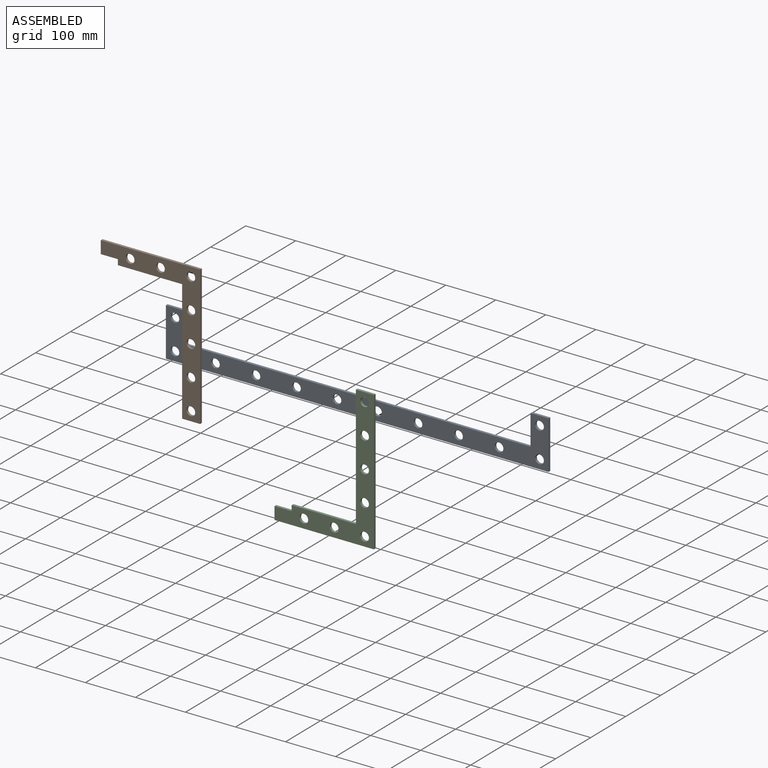
[diagram: assembled view]
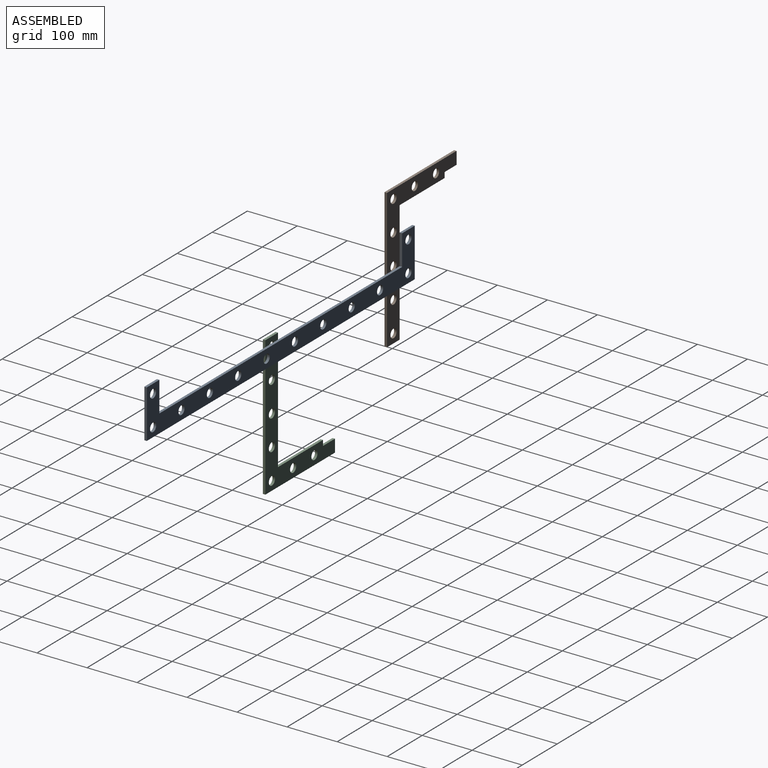
[diagram: assembled view, second angle]
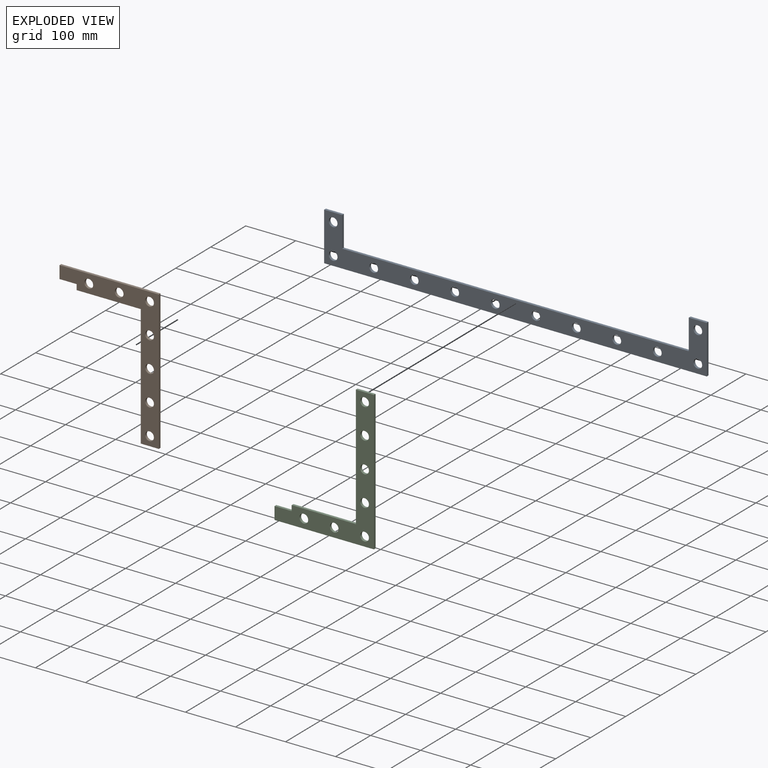
[diagram: exploded view]
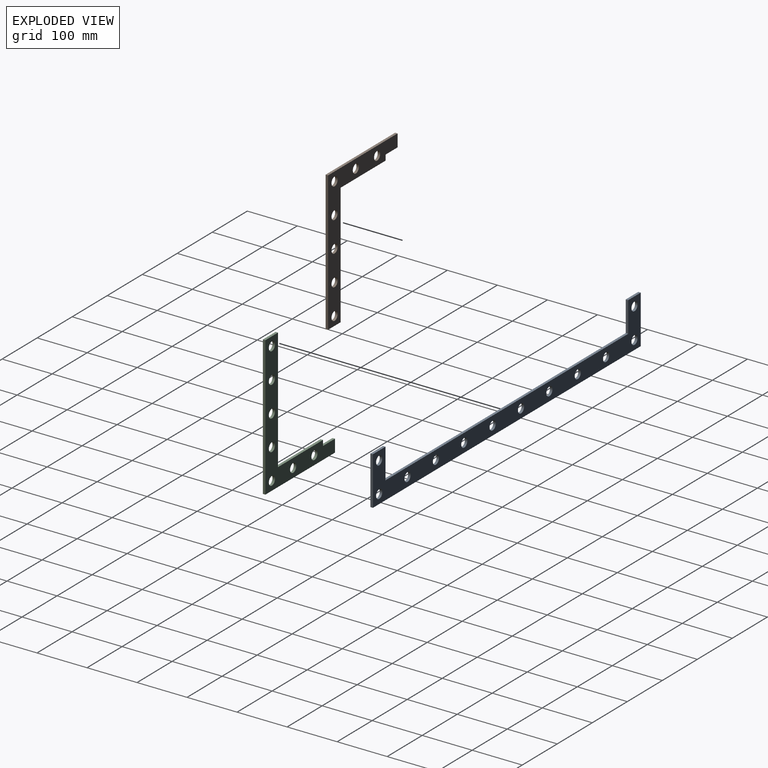
[diagram: exploded view, second angle]
ASSEMBLY  parts=3 mates=2
PART A: 22 faces, bbox 765x5x96.8 mm
  f0: plane 60.75x5mm, normal (1,0,0), area 303.7mm2, adj f1,f7,f8,f9
  f1: plane 36x5mm, normal (0,0,1), area 180mm2, adj f0,f2,f8,f9
  f2: plane 96.75x5mm, normal (-1,0,0), area 483.8mm2, adj f1,f3,f8,f9
  f3: plane 765x5mm, normal (0,0,-1), area 3825mm2, adj f2,f4,f8,f9
  f4: plane 96.75x5mm, normal (1,0,0), area 483.8mm2, adj f3,f5,f8,f9
  f5: plane 36x5mm, normal (0,0,1), area 180mm2, adj f4,f6,f8,f9
  f6: plane 60.75x5mm, normal (-1,0,0), area 303.7mm2, adj f5,f7,f8,f9
  f7: plane 693x5mm, normal (0,0,1), area 3465mm2, adj f0,f6,f8,f9
  f8: plane 765x96.75mm, normal (0,-1,0), area 29027.7mm2, adj f0,f1,f2,f3,f4,f5,f6,f7
  f9: plane 765x96.75mm, normal (0,1,0), area 29027.7mm2, adj f0,f1,f2,f3,f4,f5,f6,f7
  f10: cylinder r=8.75mm len=17.5mm, axis (0,1,0), area 274.9mm2, adj f8,f9
  f11: cylinder r=8.75mm len=17.5mm, axis (0,1,0), area 274.9mm2, adj f8,f9
  f12: cylinder r=8.75mm len=17.5mm, axis (0,1,0), area 274.9mm2, adj f8,f9
  f13: cylinder r=8.75mm len=17.5mm, axis (0,1,0), area 274.9mm2, adj f8,f9
  f14: cylinder r=8.75mm len=17.5mm, axis (0,1,0), area 274.9mm2, adj f8,f9
  f15: cylinder r=8.75mm len=17.5mm, axis (0,1,0), area 274.9mm2, adj f8,f9
  f16: cylinder r=8.75mm len=17.5mm, axis (0,1,0), area 274.9mm2, adj f8,f9
  f17: cylinder r=8.75mm len=17.5mm, axis (0,1,0), area 274.9mm2, adj f8,f9
  f18: cylinder r=8.75mm len=17.5mm, axis (0,1,0), area 274.9mm2, adj f8,f9
  f19: cylinder r=8.75mm len=17.5mm, axis (0,1,0), area 274.9mm2, adj f8,f9
  f20: cylinder r=8.75mm len=17.5mm, axis (0,1,0), area 274.9mm2, adj f8,f9
  f21: cylinder r=8.75mm len=17.5mm, axis (0,1,0), area 274.9mm2, adj f8,f9
PART B: 17 faces, bbox 198.6x5x279 mm
  f0: plane 198.59x5mm, normal (0,0,1), area 993mm2, adj f1,f7,f8,f9
  f1: plane 25.13x5mm, normal (-1,0,0), area 125.7mm2, adj f0,f2,f8,f9
  f2: plane 34.22x5mm, normal (0,0,-1), area 171.1mm2, adj f1,f3,f8,f9
  f3: plane 10.87x5mm, normal (-1,0,0), area 54.3mm2, adj f2,f4,f8,f9
  f4: plane 128.38x5mm, normal (0,0,-1), area 641.9mm2, adj f3,f5,f8,f9
  f5: plane 243x5mm, normal (-1,0,0), area 1215mm2, adj f4,f6,f8,f9
  f6: plane 36x5mm, normal (0,0,-1), area 180mm2, adj f5,f7,f8,f9
  f7: plane 279x5mm, normal (1,0,0), area 1395mm2, adj f0,f6,f8,f9
  f8: plane 279x198.59mm, normal (0,-1,0), area 13841.8mm2, adj f0,f1,f2,f3,f4,f5,f6,f7
  f9: plane 279x198.59mm, normal (0,1,0), area 13841.8mm2, adj f0,f1,f2,f3,f4,f5,f6,f7
  f10: cylinder r=8.75mm len=17.5mm, axis (0,-1,0), area 274.9mm2, adj f8,f9
  f11: cylinder r=8.75mm len=17.5mm, axis (0,-1,0), area 274.9mm2, adj f8,f9
  f12: cylinder r=8.75mm len=17.5mm, axis (0,-1,0), area 274.9mm2, adj f8,f9
  f13: cylinder r=8.75mm len=17.5mm, axis (0,-1,0), area 274.9mm2, adj f8,f9
  f14: cylinder r=8.75mm len=17.5mm, axis (0,-1,0), area 274.9mm2, adj f8,f9
  f15: cylinder r=8.75mm len=17.5mm, axis (0,-1,0), area 274.9mm2, adj f8,f9
  f16: cylinder r=8.75mm len=17.5mm, axis (0,-1,0), area 274.9mm2, adj f8,f9
PART C: same geometry as B
PLACE A t=(-74.36,-22.22,78.88)mm
PLACE B t=(-236.96,-27.22,164.38)mm
PLACE C rot(axis=(1,0,0),180deg) t=(110.37,-32.22,-248.24)mm
MATE planar A.f8 <-> B.f9  axis (0,-1,0) through (-74.36,-27.22,18.13)mm
MATE planar C.f8 <-> A.f8  axis (0,1,0) through (256.6,-27.22,-152.97)mm
